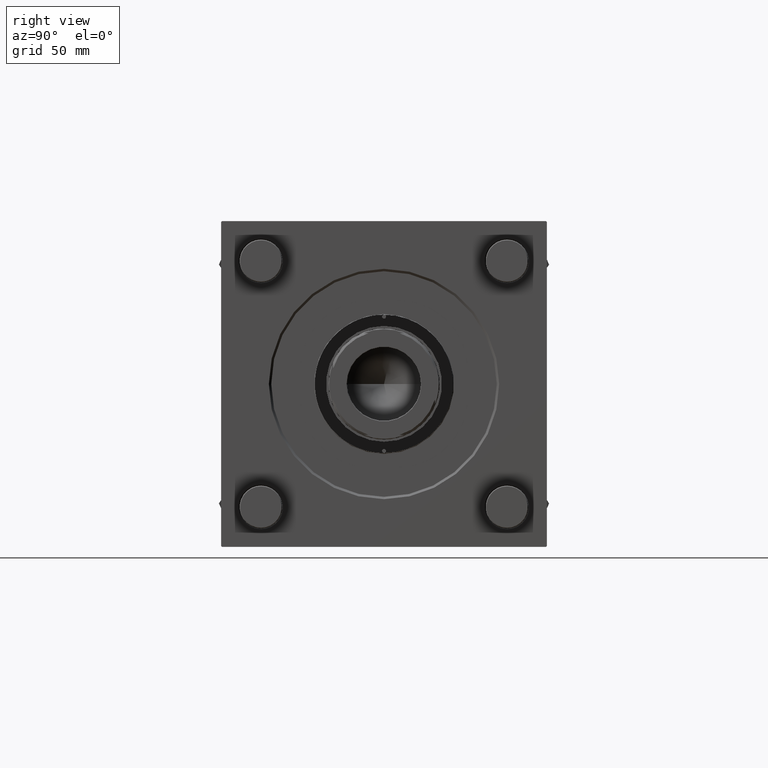
[diagram: clean part render]
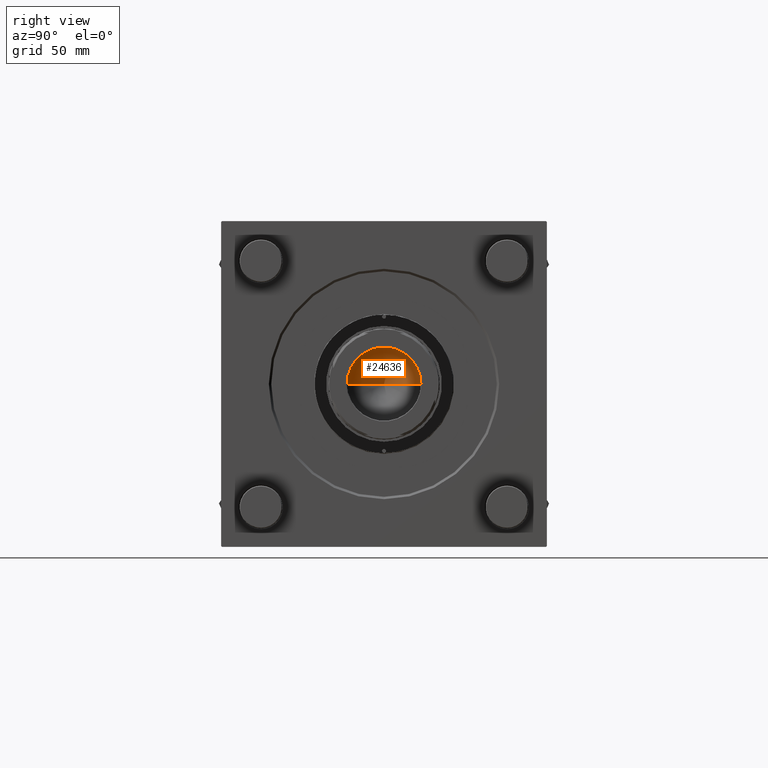
[diagram: same view with one face highlighted and labeled with its STEP entity id]
A machine part, right view. The second image highlights one B-rep face of the part: STEP entity #24636.
In plain terms, the highlighted conical surface has half-angle 59 deg.
Its self-contained STEP definition (entity closure, byte-faithful):
#2839 = DIRECTION ( 'NONE',  ( -0.000000000000000000, -0.000000000000000000, 1.000000000000000000 ) ) ;
#5013 = CARTESIAN_POINT ( 'NONE',  ( 0.000000000000000000, 0.000000000000000000, 136.9999999999999716 ) ) ;
#9073 = DIRECTION ( 'NONE',  ( 1.000000000000000000, 0.000000000000000000, 0.000000000000000000 ) ) ;
#9078 = ORIENTED_EDGE ( 'NONE', *, *, #23925, .F. ) ;
#9789 = VECTOR ( 'NONE', #25775, 1000.000000000000000 ) ;
#10135 = VERTEX_POINT ( 'NONE', #20193 ) ;
#11050 = EDGE_LOOP ( 'NONE', ( #9078, #49415, #54438 ) ) ;
#12943 = VERTEX_POINT ( 'NONE', #15197 ) ;
#13491 = CIRCLE ( 'NONE', #54250, 23.24999999999998579 ) ;
#15197 = CARTESIAN_POINT ( 'NONE',  ( 23.24999999999998579, 0.000000000000000000, 136.9999999999999716 ) ) ;
#20193 = CARTESIAN_POINT ( 'NONE',  ( -1.584115414415908206E-14, 0.000000000000000000, 123.0299906076091929 ) ) ;
#20553 = DIRECTION ( 'NONE',  ( 1.000000000000000000, 0.000000000000000000, 0.000000000000000000 ) ) ;
#21125 = LINE ( 'NONE', #38813, #9789 ) ;
#22143 = FACE_OUTER_BOUND ( 'NONE', #11050, .T. ) ;
#22725 = DIRECTION ( 'NONE',  ( -0.000000000000000000, -0.000000000000000000, 1.000000000000000000 ) ) ;
#23925 = EDGE_CURVE ( 'NONE', #10135, #12943, #21125, .T. ) ;
#24636 = ADVANCED_FACE ( 'NONE', ( #22143 ), #37618, .F. ) ;
#24848 = LINE ( 'NONE', #42527, #29890 ) ;
#25656 = CARTESIAN_POINT ( 'NONE',  ( -23.24999999999998579, 2.847303808017594561E-15, 136.9999999999999716 ) ) ;
#25775 = DIRECTION ( 'NONE',  ( 0.8571673007021117785, 0.000000000000000000, 0.5150380749100550437 ) ) ;
#29429 = VERTEX_POINT ( 'NONE', #25656 ) ;
#29890 = VECTOR ( 'NONE', #31227, 1000.000000000000000 ) ;
#31227 = DIRECTION ( 'NONE',  ( -0.8571673007021117785, 1.049727191138617956E-16, 0.5150380749100550437 ) ) ;
#37618 = CONICAL_SURFACE ( 'NONE', #45031, 23.24999999999998579, 1.029744258676653423 ) ;
#38813 = CARTESIAN_POINT ( 'NONE',  ( 23.24999999999998579, 0.000000000000000000, 136.9999999999999716 ) ) ;
#42527 = CARTESIAN_POINT ( 'NONE',  ( -23.24999999999998579, 2.847303808017594561E-15, 136.9999999999999716 ) ) ;
#42871 = CARTESIAN_POINT ( 'NONE',  ( 0.000000000000000000, 0.000000000000000000, 136.9999999999999716 ) ) ;
#42957 = EDGE_CURVE ( 'NONE', #10135, #29429, #24848, .T. ) ;
#45031 = AXIS2_PLACEMENT_3D ( 'NONE', #5013, #22725, #9073 ) ;
#49415 = ORIENTED_EDGE ( 'NONE', *, *, #42957, .T. ) ;
#54250 = AXIS2_PLACEMENT_3D ( 'NONE', #42871, #2839, #20553 ) ;
#54438 = ORIENTED_EDGE ( 'NONE', *, *, #55518, .T. ) ;
#55518 = EDGE_CURVE ( 'NONE', #29429, #12943, #13491, .T. ) ;